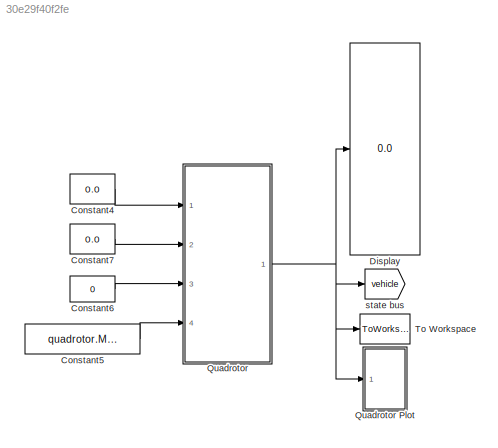
MODEL slx_30e29f40f2fe
KIND model
CONFIG AbsTol = auto
CONFIG EnableMultiTasking = off
CONFIG FixedStep = auto
CONFIG InitFcn = % load parameters of the default quadrotor\ndisp('Quadrotor parameters loaded by PreLoadFcn')\nmdl_quad\n
CONFIG MaxStep = auto
CONFIG MinStep = auto
CONFIG RelTol = 1e-3
CONFIG SampleTimeConstraint = Unconstrained
CONFIG Solver = VariableStepAuto
CONFIG SolverName = VariableStepAuto
CONFIG StartTime = 0.0
CONFIG StopTime = 10.0
BLOCK [Constant] Constant4
  Value = 0.0
BLOCK [Constant] Constant5
  Value = quadrotor.M*quadrotor.g
BLOCK [Constant] Constant6
  Value = 0
BLOCK [Constant] Constant7
  Value = 0.0
BLOCK [Display] Display
  Decimation = 1
  Ports = [1]
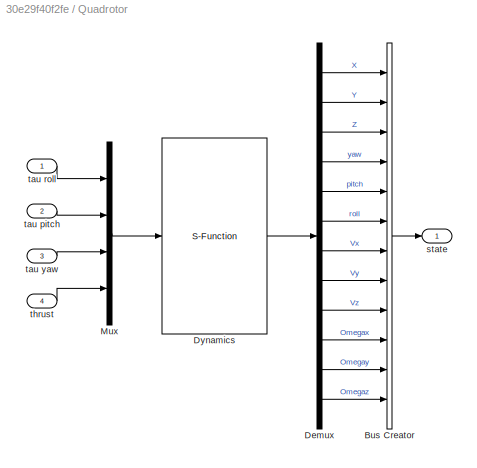
BLOCK [SubSystem] Quadrotor
  Ports = [4, 1]
  RequestExecContextInheritance = off
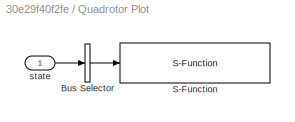
BLOCK [SubSystem] Quadrotor Plot
  Ports = [1]
  RequestExecContextInheritance = off
BLOCK [BusSelector] Quadrotor Plot/Bus Selector
  OutputAsBus = on
  OutputSignals = X,Y,Z,yaw,pitch,roll
  Ports = [1, 1]
BLOCK [S-Function] Quadrotor Plot/S-Function
  EnableBusSupport = off
  FunctionName = quadrotor_plot
  Parameters = [xydim, zdim], plot, enable,quad
  Ports = [1]
  SFcnIsStateOwnerBlock = off
  SFunctionDeploymentMode = off
BLOCK [Inport] Quadrotor Plot/state
  NameLocation = top
BLOCK [BusCreator] Quadrotor/Bus Creator
  DisplayOption = bar
  InheritFromInputs = on
  Inputs = X,Y,Z,yaw,pitch,roll,Vx,Vy,Vz,Omegax,Omegay,Omegaz
  Ports = [12, 1]
BLOCK [Demux] Quadrotor/Demux
  Outputs = 12
  Ports = [1, 12]
BLOCK [S-Function] Quadrotor/Dynamics
  EnableBusSupport = off
  FunctionName = quadrotor_dynamics
  Parameters = quad, x0, n0, groundflag
  Ports = [1, 1]
  SFcnIsStateOwnerBlock = off
  SFunctionDeploymentMode = off
BLOCK [Mux] Quadrotor/Mux
  DisplayOption = bar
  Ports = [4, 1]
BLOCK [Outport] Quadrotor/state
BLOCK [Inport] Quadrotor/tau pitch
  Port = 2
BLOCK [Inport] Quadrotor/tau roll
BLOCK [Inport] Quadrotor/tau yaw
  Port = 3
BLOCK [Inport] Quadrotor/thrust
  Port = 4
BLOCK [ToWorkspace] To Workspace
  MaxDataPoints = inf
  Ports = [1]
  SampleTime = -1
  VariableName = state
BLOCK [Goto] state bus
  GotoTag = vehicle
  IconDisplay = Tag and signal name
  TagVisibility = global
LINE Constant4:1 -> Quadrotor:1
LINE Constant5:1 -> Quadrotor:4
LINE Constant6:1 -> Quadrotor:3
LINE Constant7:1 -> Quadrotor:2
LINE Quadrotor Plot/Bus Selector:1 -> Quadrotor Plot/S-Function:1
LINE Quadrotor Plot/state:1 -> Quadrotor Plot/Bus Selector:1
LINE Quadrotor/Bus Creator:1 -> Quadrotor/state:1
LINE Quadrotor/Demux:1 -> Quadrotor/Bus Creator:1
LINE Quadrotor/Demux:10 -> Quadrotor/Bus Creator:10
LINE Quadrotor/Demux:11 -> Quadrotor/Bus Creator:11
LINE Quadrotor/Demux:12 -> Quadrotor/Bus Creator:12
LINE Quadrotor/Demux:2 -> Quadrotor/Bus Creator:2
LINE Quadrotor/Demux:3 -> Quadrotor/Bus Creator:3
LINE Quadrotor/Demux:4 -> Quadrotor/Bus Creator:4
LINE Quadrotor/Demux:5 -> Quadrotor/Bus Creator:5
LINE Quadrotor/Demux:6 -> Quadrotor/Bus Creator:6
LINE Quadrotor/Demux:7 -> Quadrotor/Bus Creator:7
LINE Quadrotor/Demux:8 -> Quadrotor/Bus Creator:8
LINE Quadrotor/Demux:9 -> Quadrotor/Bus Creator:9
LINE Quadrotor/Dynamics:1 -> Quadrotor/Demux:1
LINE Quadrotor/Mux:1 -> Quadrotor/Dynamics:1
LINE Quadrotor/tau pitch:1 -> Quadrotor/Mux:2
LINE Quadrotor/tau roll:1 -> Quadrotor/Mux:1
LINE Quadrotor/tau yaw:1 -> Quadrotor/Mux:3
LINE Quadrotor/thrust:1 -> Quadrotor/Mux:4
NET Quadrotor:1 -> Display:1, Quadrotor Plot:1, To Workspace:1, state bus:1
note: NET lines group one-source signal fan-out (src -> all destinations, sorted); 1:1 wires keep LINE
